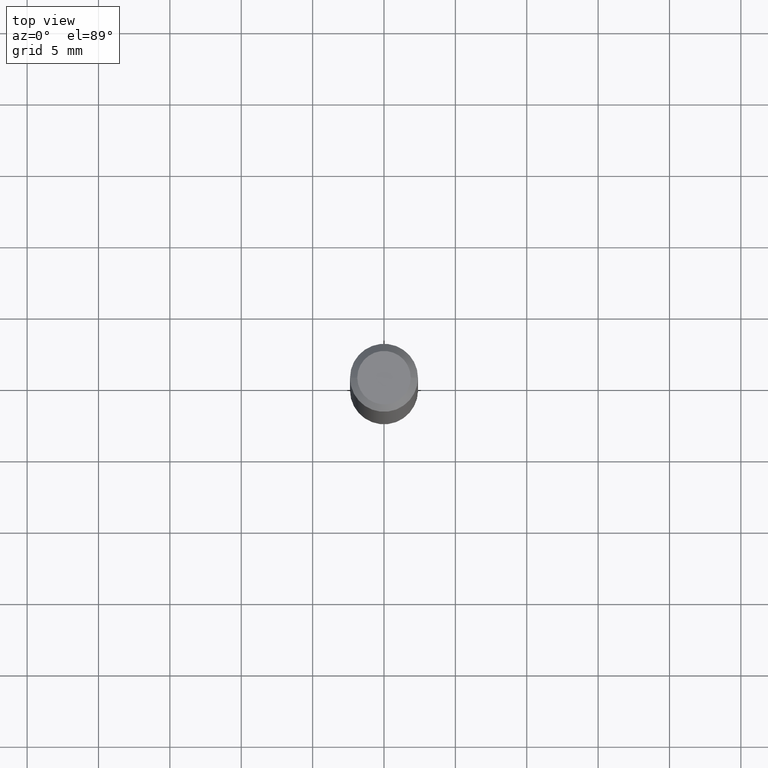
[diagram: clean part render]
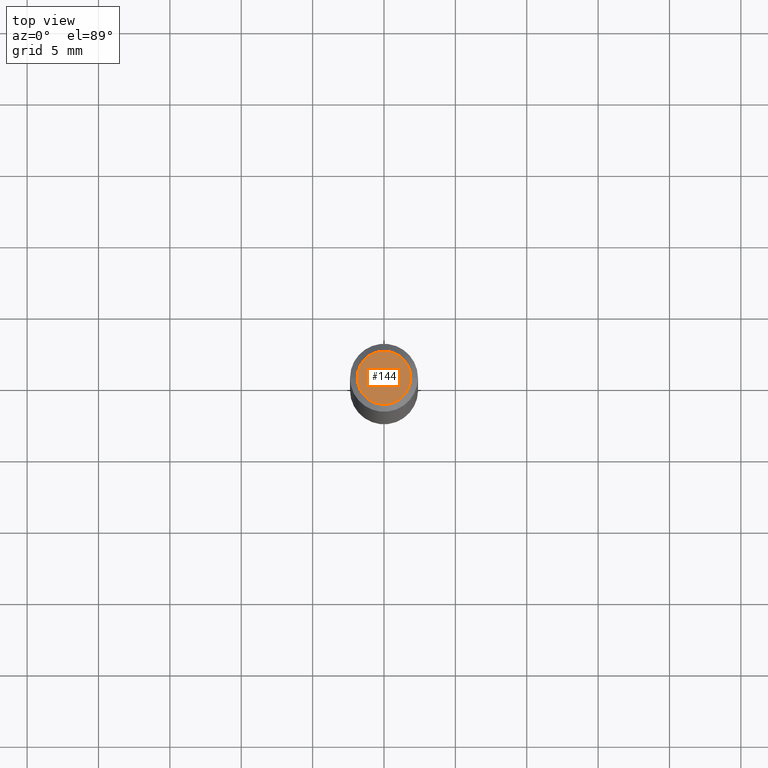
[diagram: same view with one face highlighted and labeled with its STEP entity id]
A machine part, top view. The second image highlights one B-rep face of the part: STEP entity #144.
In plain terms, the highlighted planar face has unit normal (0, -0, -1).
Its self-contained STEP definition (entity closure, byte-faithful):
#14 = AXIS2_PLACEMENT_3D ( 'NONE', #227, #316, #290 ) ;
#38 = CARTESIAN_POINT ( 'NONE',  ( 0.07374999999999981570, -6.094815207017959226E-16, 4.268512490104342487E-18 ) ) ;
#113 = CIRCLE ( 'NONE', #270, 0.07374999999999981570 ) ;
#114 = ORIENTED_EDGE ( 'NONE', *, *, #200, .T. ) ;
#144 = ADVANCED_FACE ( 'NONE', ( #146 ), #197, .F. ) ;
#146 = FACE_OUTER_BOUND ( 'NONE', #330, .T. ) ;
#153 = DIRECTION ( 'NONE',  ( -2.445468806185136597E-29, 3.491481338843145583E-15, 1.000000000000000000 ) ) ;
#154 = ORIENTED_EDGE ( 'NONE', *, *, #211, .T. ) ;
#197 = PLANE ( 'NONE',  #215 ) ;
#200 = EDGE_CURVE ( 'NONE', #359, #282, #299, .T. ) ;
#211 = EDGE_CURVE ( 'NONE', #282, #359, #113, .T. ) ;
#212 = CARTESIAN_POINT ( 'NONE',  ( -1.043851414335219820E-46, 1.490343170380447200E-32, 4.268512490100411279E-18 ) ) ;
#215 = AXIS2_PLACEMENT_3D ( 'NONE', #261, #366, #311 ) ;
#227 = CARTESIAN_POINT ( 'NONE',  ( -1.043851414335219820E-46, 1.490343170380447200E-32, 4.268512490100411279E-18 ) ) ;
#234 = DIRECTION ( 'NONE',  ( 1.000000000000000000, -6.982962677686265922E-15, 4.875869617646597298E-29 ) ) ;
#261 = CARTESIAN_POINT ( 'NONE',  ( 5.149934974793608091E-16, 0.07374999999999981570, -2.553624924946311280E-16 ) ) ;
#270 = AXIS2_PLACEMENT_3D ( 'NONE', #212, #153, #234 ) ;
#271 = CARTESIAN_POINT ( 'NONE',  ( -0.07374999999999981570, 5.499083108677918666E-16, 4.268512490096688071E-18 ) ) ;
#282 = VERTEX_POINT ( 'NONE', #38 ) ;
#290 = DIRECTION ( 'NONE',  ( 1.000000000000000000, -6.982962677686265922E-15, 4.875869617646597298E-29 ) ) ;
#299 = CIRCLE ( 'NONE', #14, 0.07374999999999981570 ) ;
#311 = DIRECTION ( 'NONE',  ( -1.000000000000000000, 6.982962677686265922E-15, -4.876176775795935793E-29 ) ) ;
#316 = DIRECTION ( 'NONE',  ( -2.445468806185136597E-29, 3.491481338843145583E-15, 1.000000000000000000 ) ) ;
#330 = EDGE_LOOP ( 'NONE', ( #114, #154 ) ) ;
#359 = VERTEX_POINT ( 'NONE', #271 ) ;
#366 = DIRECTION ( 'NONE',  ( 2.438088387897960049E-29, -3.491481338843145188E-15, -1.000000000000000000 ) ) ;